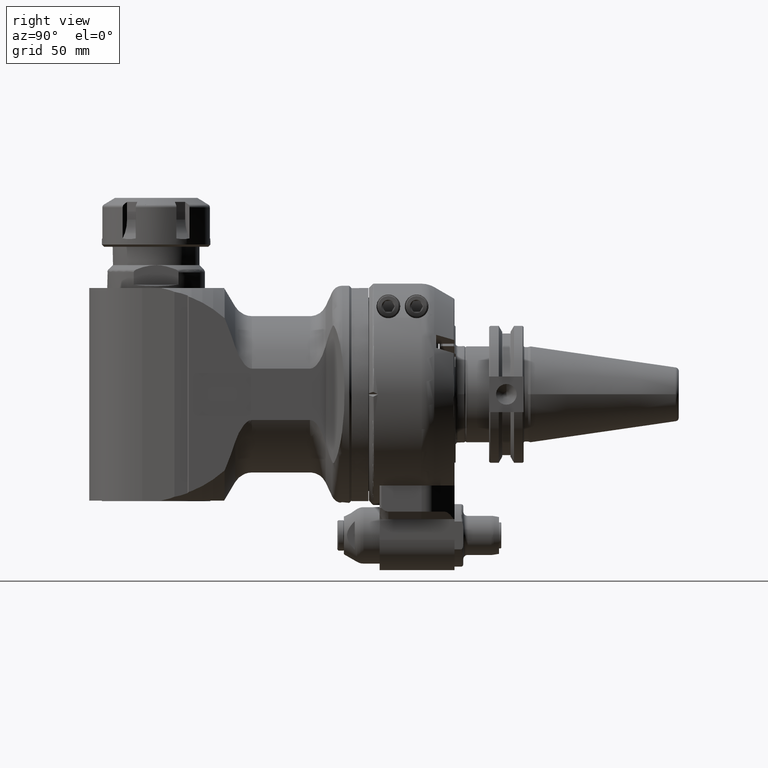
[diagram: clean part render]
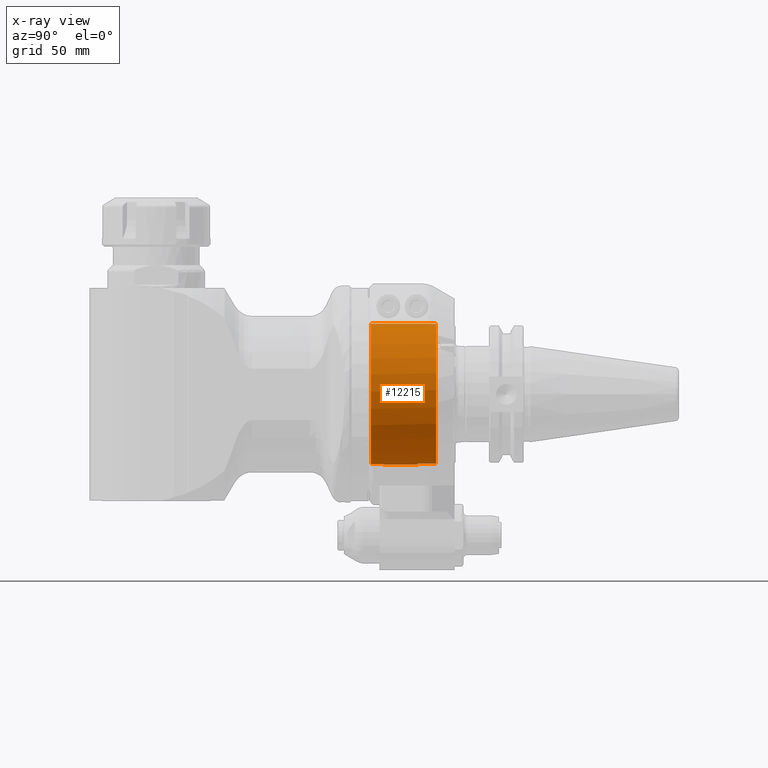
[diagram: x-ray — body ghosted, one internal face saturated and labeled with its STEP entity id]
A machine part, right view, then the same camera in x-ray: the body is ghosted and one INTERNAL B-rep face — a face not visible from any outside direction — is saturated and labeled: STEP entity #12215.
In plain terms, the highlighted cylindrical surface (partial cylindrical patch) has radius 32.5 mm, axis along (0, -1, 0).
Its self-contained STEP definition (entity closure, byte-faithful):
#1380=LINE('',#26145,#2267);
#1381=LINE('',#26148,#2268);
#1382=LINE('',#26152,#2269);
#1383=LINE('',#26156,#2270);
#2267=VECTOR('',#15808,8.5);
#2268=VECTOR('',#15811,8.5);
#2269=VECTOR('',#15814,30.);
#2270=VECTOR('',#15817,29.99999999998);
#2688=CYLINDRICAL_SURFACE('',#13320,32.5);
#3114=FACE_OUTER_BOUND('',#3836,.T.);
#3836=EDGE_LOOP('',(#10069,#10070,#10071,#10072,#10073,#10074,#10075,#10076));
#4493=CIRCLE('',#13271,32.5);
#4515=CIRCLE('',#13321,32.5);
#4516=CIRCLE('',#13322,32.5);
#4517=CIRCLE('',#13323,32.5);
#5562=VERTEX_POINT('',#25253);
#5563=VERTEX_POINT('',#25255);
#5601=VERTEX_POINT('',#26143);
#5602=VERTEX_POINT('',#26147);
#5603=VERTEX_POINT('',#26149);
#5604=VERTEX_POINT('',#26151);
#5605=VERTEX_POINT('',#26153);
#5606=VERTEX_POINT('',#26155);
#7110=EDGE_CURVE('',#5563,#5562,#4493,.T.);
#7180=EDGE_CURVE('',#5562,#5601,#1380,.T.);
#7181=EDGE_CURVE('',#5563,#5602,#1381,.T.);
#7182=EDGE_CURVE('',#5603,#5601,#4515,.T.);
#7183=EDGE_CURVE('',#5603,#5604,#1382,.T.);
#7184=EDGE_CURVE('',#5605,#5604,#4516,.T.);
#7185=EDGE_CURVE('',#5605,#5606,#1383,.T.);
#7186=EDGE_CURVE('',#5602,#5606,#4517,.T.);
#10069=ORIENTED_EDGE('',*,*,#7181,.F.);
#10070=ORIENTED_EDGE('',*,*,#7110,.T.);
#10071=ORIENTED_EDGE('',*,*,#7180,.T.);
#10072=ORIENTED_EDGE('',*,*,#7182,.F.);
#10073=ORIENTED_EDGE('',*,*,#7183,.T.);
#10074=ORIENTED_EDGE('',*,*,#7184,.F.);
#10075=ORIENTED_EDGE('',*,*,#7185,.T.);
#10076=ORIENTED_EDGE('',*,*,#7186,.F.);
#12215=ADVANCED_FACE('',(#3114),#2688,.F.);
#13271=AXIS2_PLACEMENT_3D('',#25256,#15677,#15678);
#13320=AXIS2_PLACEMENT_3D('',#26146,#15809,#15810);
#13321=AXIS2_PLACEMENT_3D('',#26150,#15812,#15813);
#13322=AXIS2_PLACEMENT_3D('',#26154,#15815,#15816);
#13323=AXIS2_PLACEMENT_3D('',#26157,#15818,#15819);
#15677=DIRECTION('center_axis',(0.,1.,0.));
#15678=DIRECTION('ref_axis',(0.164179104477598,0.,-0.986430545782588));
#15808=DIRECTION('',(0.,1.,0.));
#15809=DIRECTION('center_axis',(0.,-1.,0.));
#15810=DIRECTION('ref_axis',(1.38678298153134E-13,0.,-1.));
#15811=DIRECTION('',(0.,1.,0.));
#15812=DIRECTION('center_axis',(0.,-1.,0.));
#15813=DIRECTION('ref_axis',(-0.0461538461538519,0.,0.998934343430642));
#15814=DIRECTION('',(0.,-1.,0.));
#15815=DIRECTION('center_axis',(0.,1.,0.));
#15816=DIRECTION('ref_axis',(0.,0.,-1.));
#15817=DIRECTION('',(3.148370453234E-13,1.,-1.421085471521E-14));
#15818=DIRECTION('center_axis',(0.,-1.,0.));
#15819=DIRECTION('ref_axis',(0.164179104477598,0.,-0.986430545782588));
#25253=CARTESIAN_POINT('',(-5.335820895522,22.5,-32.05899273793));
#25255=CARTESIAN_POINT('',(5.335820895522,22.5,-32.05899273793));
#25256=CARTESIAN_POINT('Origin',(0.,22.5,0.));
#26143=CARTESIAN_POINT('',(-5.335820895522,31.,-32.05899273793));
#26145=CARTESIAN_POINT('',(-5.335820895522,22.5,-32.05899273793));
#26146=CARTESIAN_POINT('Origin',(0.,16.5,0.));
#26147=CARTESIAN_POINT('',(5.335820895522,31.,-32.05899273793));
#26148=CARTESIAN_POINT('',(5.335820895522,22.5,-32.05899273793));
#26149=CARTESIAN_POINT('',(-1.5,31.,32.4653661615));
#26150=CARTESIAN_POINT('Origin',(0.,31.,0.));
#26151=CARTESIAN_POINT('',(-1.5,1.,32.4653661615));
#26152=CARTESIAN_POINT('',(-1.5,31.,32.4653661615));
#26153=CARTESIAN_POINT('',(1.499999999991,1.000000000023,32.4653661615));
#26154=CARTESIAN_POINT('Origin',(0.,0.9999999999999,0.));
#26155=CARTESIAN_POINT('',(1.5,31.,32.4653661615));
#26156=CARTESIAN_POINT('',(1.499999999991,1.000000000023,32.4653661615));
#26157=CARTESIAN_POINT('Origin',(0.,31.,0.));